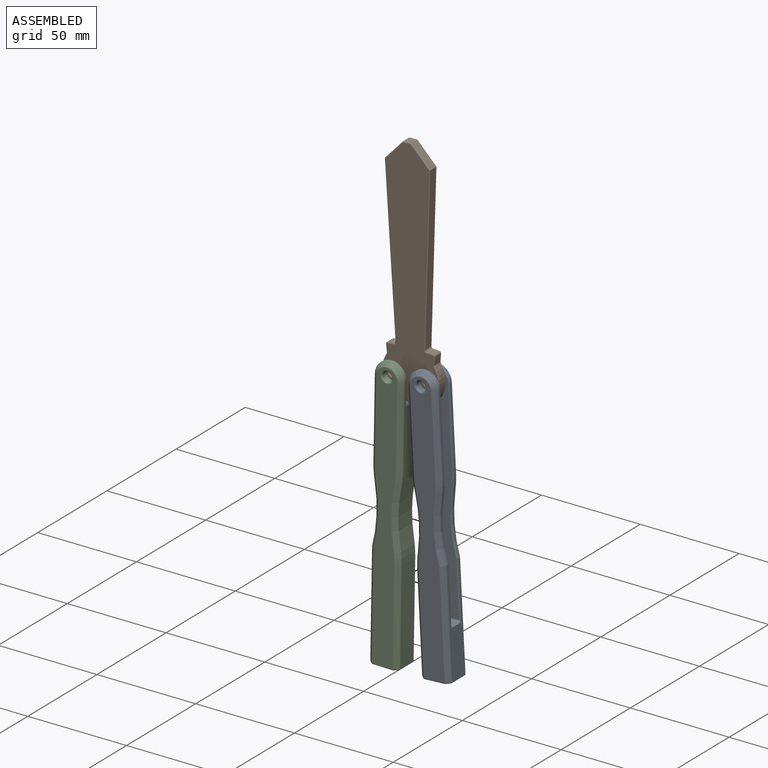
[diagram: assembled view]
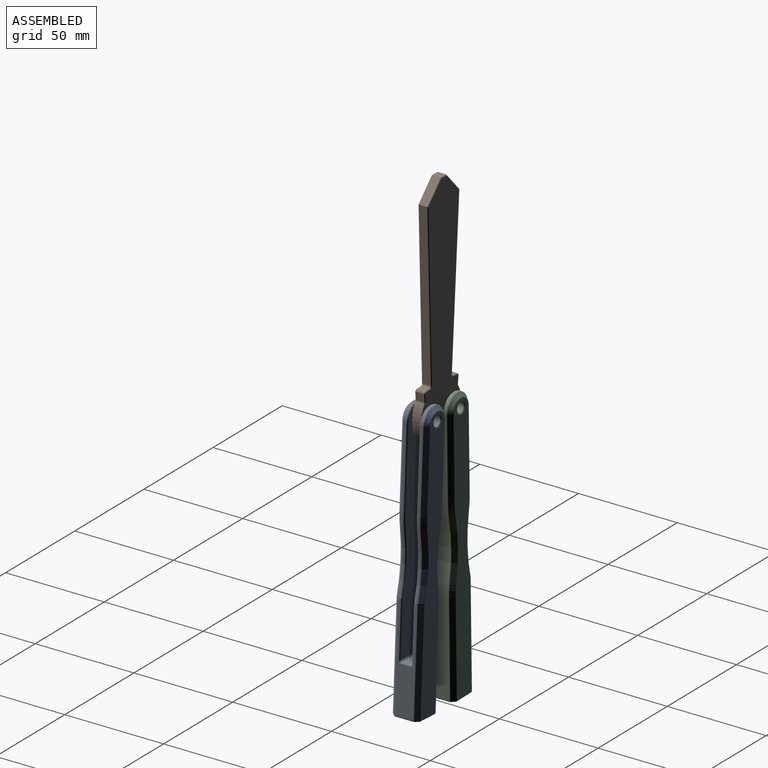
[diagram: assembled view, second angle]
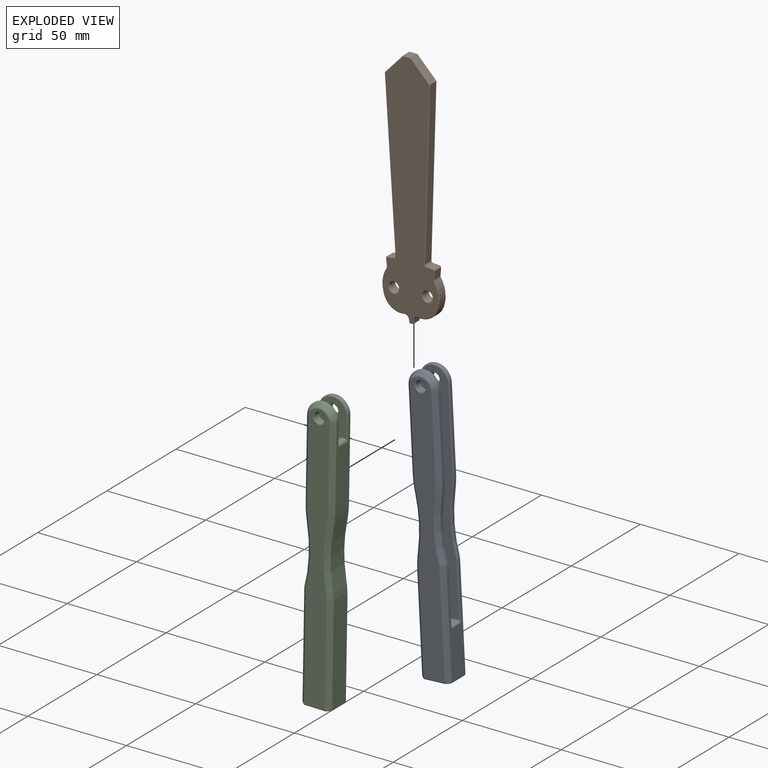
[diagram: exploded view]
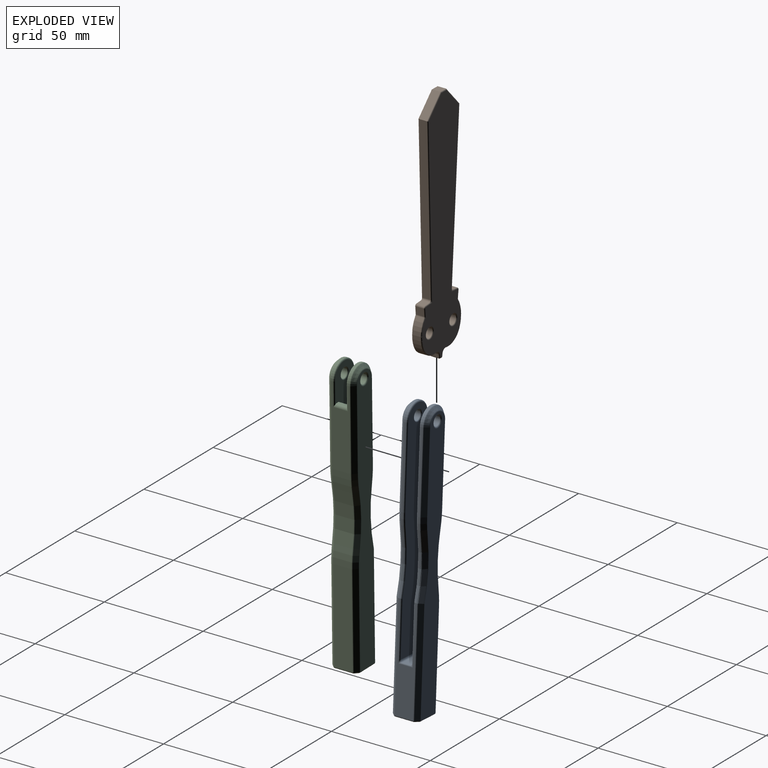
[diagram: exploded view, second angle]
ASSEMBLY  parts=3 mates=2
PART A: 128 faces, bbox 16.2x14x140.6 mm
  f0: plane 40.44x9.42mm, normal (-1,0,0), area 293.1mm2, adj f4,f5,f16,f20,f66,f74,f89,f105
  f1: plane 52.63x9.42mm, normal (1,0,0), area 281mm2, adj f93,f99,f103,f108,f111,f112,f114,f115
  f2: plane 40.44x1.01mm, normal (1,0,0), area 40.8mm2, adj f5,f22,f81,f88
  f3: plane 47.54x9.42mm, normal (-1,0,0), area 447.8mm2, adj f21,f49,f61,f62
  f4: cylinder r=7.5mm len=15mm, axis (0,1,0), area 23.8mm2, adj f0,f6,f96,f109
  f5: cylinder r=7.5mm len=15mm, axis (0,1,0), area 23.8mm2, adj f0,f2,f73,f82
  f6: plane 40.44x1.01mm, normal (1,0,0), area 40.8mm2, adj f4,f23,f101,f113
  f7: plane 13.6x12.6mm, normal (0,0,-1), area 166.3mm2, adj f62,f63,f78,f79,f91,f92,f102,f103
  f8: plane 137.01x10.42mm, normal (0,-1,0), area 1290.7mm2, adj f46,f47,f50,f51,f55,f56,f64,f65
  f9: plane 137.01x10.42mm, normal (0,1,0), area 1290.7mm2, adj f52,f57,f58,f59,f68,f69,f76,f77
  f10: plane 113.3x13.6mm, normal (0,1,0), area 1130.3mm2, adj f11,f14,f15,f16,f74,f82,f88,f95
  f11: plane 94.63x6mm, normal (1,0,0), area 567.8mm2, adj f10,f12,f15,f125
  f12: plane 113.3x13.6mm, normal (0,-1,0), area 1130.3mm2, adj f11,f14,f15,f16,f105,f109,f113,f115
  f13: plane 9.3x4mm, normal (0,0,1), area 37.2mm2, adj f112,f124,f125,f126
  f14: plane 6x1mm, normal (0,0,1), area 6mm2, adj f10,f12,f15,f16
  f15: cylinder r=1.5mm len=6mm, axis (0,1,0), area 14.1mm2, adj f10,f11,f12,f14
  f16: cylinder r=1.5mm len=7.4mm, axis (0,-1,0), area 14.9mm2, adj f0,f10,f12,f14,f74,f105
  f17: cylinder r=71mm len=29.51mm, axis (0,-1,0), area 30mm2, adj f23,f110,f114,f118
  f18: cylinder r=71mm len=29.51mm, axis (0,-1,0), area 30mm2, adj f22,f94,f99,f100
  f19: cylinder r=71mm len=25.71mm, axis (0,-1,0), area 243.5mm2, adj f20,f21,f53,f75
  f20: cylinder r=50mm len=9.42mm, axis (0,-1,0), area 85.8mm2, adj f0,f19,f60,f83
  f21: cylinder r=50mm len=9.42mm, axis (0,-1,0), area 85.8mm2, adj f3,f19,f48,f67
  f22: cylinder r=50mm len=9.05mm, axis (0,-1,0), area 9.2mm2, adj f2,f18,f87,f95
  f23: cylinder r=50mm len=9.05mm, axis (0,-1,0), area 9.2mm2, adj f6,f17,f106,f116
  f24: plane 52.69x1.59mm, normal (0.71,0.71,0), area 118.3mm2, adj f25,f90,f102,f111
  f25: cone r=73mm half-angle=45deg, axis (0,1,0), area 67.7mm2, adj f24,f26,f84,f110
  f26: cone r=48mm half-angle=45deg, axis (0,-1,0), area 20.1mm2, adj f25,f27,f76,f106
  f27: plane 40.44x1.59mm, normal (0.71,0.71,0), area 90.9mm2, adj f26,f28,f68,f101
  f28: cone r=5.5mm half-angle=45deg, axis (0,-1,0), area 45.9mm2, adj f27,f29,f58,f96
  f29: plane 40.44x1.59mm, normal (-0.71,0.71,0), area 90.9mm2, adj f28,f30,f52,f89
  f30: cone r=48mm half-angle=45deg, axis (0,-1,0), area 20.1mm2, adj f29,f31,f57,f83
  f31: cone r=73mm half-angle=45deg, axis (0,1,0), area 59mm2, adj f30,f32,f59,f75
  f32: cone r=48mm half-angle=45deg, axis (0,-1,0), area 20.1mm2, adj f31,f33,f67,f69
  f33: plane 47.54x1.59mm, normal (-0.71,0.71,0), area 106.9mm2, adj f32,f61,f77,f78
  f34: plane 52.69x1.59mm, normal (0.71,-0.71,0), area 118.3mm2, adj f35,f80,f92,f93
  f35: cone r=71mm half-angle=45deg, axis (0,-1,0), area 67.7mm2, adj f34,f36,f72,f94
  f36: cone r=48mm half-angle=45deg, axis (0,1,0), area 20.1mm2, adj f35,f37,f65,f87
  f37: plane 40.44x1.59mm, normal (0.71,-0.71,0), area 90.9mm2, adj f36,f38,f56,f81
  f38: cone r=5.5mm half-angle=45deg, axis (0,1,0), area 45.9mm2, adj f37,f39,f51,f73
  f39: plane 40.44x1.59mm, normal (-0.71,-0.71,0), area 90.9mm2, adj f38,f40,f47,f66
  f40: cone r=48mm half-angle=45deg, axis (0,1,0), area 20.1mm2, adj f39,f41,f46,f60
  f41: cone r=71mm half-angle=45deg, axis (0,-1,0), area 59mm2, adj f40,f42,f50,f53
  f42: cone r=48mm half-angle=45deg, axis (0,1,0), area 20.1mm2, adj f41,f43,f48,f55
  f43: plane 47.54x1.59mm, normal (-0.71,-0.71,0), area 106.9mm2, adj f42,f49,f63,f64
  f44: cylinder r=2.5mm len=5mm, axis (0,-1,0), area 44mm2, adj f120,f121
  f45: cylinder r=2.5mm len=5mm, axis (0,-1,0), area 44mm2, adj f119,f122
  f46: torus R=47.71mm, axis (0,-1,0), area 4.8mm2, adj f8,f40,f47,f50
  f47: cylinder r=0.7mm len=40.44mm, axis (0,0,-1), area 22.2mm2, adj f8,f39,f46,f51
  f48: torus R=49.3mm, axis (0,1,0), area 5mm2, adj f21,f42,f49,f53
  f49: cylinder r=0.7mm len=47.54mm, axis (0,0,1), area 26.1mm2, adj f3,f43,f48,f54
  f50: torus R=73.29mm, axis (0,-1,0), area 14.6mm2, adj f8,f41,f46,f55
  f51: torus R=5.21mm, axis (0,-1,0), area 9.4mm2, adj f8,f38,f47,f56
  f52: cylinder r=0.7mm len=40.44mm, axis (0,0,1), area 22.2mm2, adj f9,f29,f57,f58
  f53: torus R=71.7mm, axis (0,-1,0), area 14.2mm2, adj f19,f41,f48,f60
  f54: sphere r=0.7mm, area 0.4mm2, adj f49,f62,f63
  f55: torus R=47.71mm, axis (0,-1,0), area 4.8mm2, adj f8,f42,f50,f64
  f56: cylinder r=0.7mm len=40.44mm, axis (0,0,1), area 22.2mm2, adj f8,f37,f51,f65
  f57: torus R=47.71mm, axis (0,-1,0), area 4.8mm2, adj f9,f30,f52,f59
  f58: torus R=5.21mm, axis (0,-1,0), area 9.4mm2, adj f9,f28,f52,f68
  f59: torus R=73.29mm, axis (0,-1,0), area 14.6mm2, adj f9,f31,f57,f69
  f60: torus R=49.3mm, axis (0,1,0), area 5mm2, adj f20,f40,f53,f66
  f61: cylinder r=0.7mm len=47.54mm, axis (0,0,1), area 26.1mm2, adj f3,f33,f67,f70
  f62: cylinder r=0.7mm len=9.42mm, axis (0,1,0), area 10.4mm2, adj f3,f7,f54,f70
  f63: cylinder r=0.7mm len=2.09mm, axis (-0.71,0.71,0), area 2.5mm2, adj f7,f43,f54,f71
  f64: cylinder r=0.7mm len=47.54mm, axis (0,0,-1), area 26.1mm2, adj f8,f43,f55,f71
  f65: torus R=47.71mm, axis (0,-1,0), area 4.8mm2, adj f8,f36,f56,f72
  f66: cylinder r=0.7mm len=40.44mm, axis (0,0,1), area 22.2mm2, adj f0,f39,f60,f73
  f67: torus R=49.3mm, axis (0,-1,0), area 5mm2, adj f21,f32,f61,f75
  f68: cylinder r=0.7mm len=40.44mm, axis (0,0,-1), area 22.2mm2, adj f9,f27,f58,f76
  f69: torus R=47.71mm, axis (0,-1,0), area 4.8mm2, adj f9,f32,f59,f77
  f70: sphere r=0.7mm, area 0.4mm2, adj f61,f62,f78
  f71: sphere r=0.7mm, area 0.4mm2, adj f63,f64,f79
  f72: torus R=73.29mm, axis (0,-1,0), area 16.7mm2, adj f8,f35,f65,f80
  f73: torus R=6.8mm, axis (0,1,0), area 12.8mm2, adj f5,f38,f66,f81
  f74: cylinder r=0.7mm len=11.87mm, axis (0,0,-1), area 12.3mm2, adj f0,f10,f16,f82
  f75: torus R=71.7mm, axis (0,1,0), area 14.2mm2, adj f19,f31,f67,f83
  f76: torus R=47.71mm, axis (0,-1,0), area 4.8mm2, adj f9,f26,f68,f84
  f77: cylinder r=0.7mm len=47.54mm, axis (0,0,1), area 26.1mm2, adj f9,f33,f69,f85
  f78: cylinder r=0.7mm len=2.09mm, axis (-0.71,-0.71,0), area 2.5mm2, adj f7,f33,f70,f85
  f79: cylinder r=0.7mm len=10.42mm, axis (1,0,0), area 11.5mm2, adj f7,f8,f71,f86
  f80: cylinder r=0.7mm len=52.5mm, axis (0,0,1), area 28.8mm2, adj f8,f34,f72,f86
  f81: cylinder r=0.7mm len=40.44mm, axis (0,0,-1), area 22.2mm2, adj f2,f37,f73,f87
  f82: torus R=6.8mm, axis (0,-1,0), area 25mm2, adj f5,f10,f74,f88
  f83: torus R=49.3mm, axis (0,-1,0), area 5mm2, adj f20,f30,f75,f89
  f84: torus R=73.29mm, axis (0,-1,0), area 16.7mm2, adj f9,f25,f76,f90
  f85: sphere r=0.7mm, area 0.4mm2, adj f77,f78,f91
  f86: sphere r=0.7mm, area 0.4mm2, adj f79,f80,f92
  f87: torus R=49.3mm, axis (0,1,0), area 5mm2, adj f22,f36,f81,f94
  f88: cylinder r=0.7mm len=40.44mm, axis (0,0,-1), area 44.5mm2, adj f2,f10,f82,f95
  f89: cylinder r=0.7mm len=40.44mm, axis (0,0,1), area 22.2mm2, adj f0,f29,f83,f96
  f90: cylinder r=0.7mm len=52.5mm, axis (0,0,-1), area 28.8mm2, adj f9,f24,f84,f97
  f91: cylinder r=0.7mm len=10.42mm, axis (-1,0,0), area 11.5mm2, adj f7,f9,f85,f97
  f92: cylinder r=0.7mm len=2.09mm, axis (-0.71,-0.71,0), area 2.5mm2, adj f7,f34,f86,f98
  f93: cylinder r=0.7mm len=52.72mm, axis (0,0,-1), area 29mm2, adj f1,f34,f94,f98,f99
  f94: torus R=71.7mm, axis (0,-1,0), area 16.4mm2, adj f18,f35,f87,f93,f99
  f95: torus R=49.3mm, axis (0,-1,0), area 10mm2, adj f10,f22,f88,f100
  f96: torus R=6.8mm, axis (0,-1,0), area 12.8mm2, adj f4,f28,f89,f101
  f97: sphere r=0.7mm, area 0.4mm2, adj f90,f91,f102
  f98: sphere r=0.7mm, area 0.4mm2, adj f92,f93,f103
  f99: cylinder r=0.7mm len=1.09mm, axis (0,-1,0), area 0.2mm2, adj f1,f18,f93,f94,f104
  f100: torus R=71.7mm, axis (0,-1,0), area 32.8mm2, adj f10,f18,f95,f104
  f101: cylinder r=0.7mm len=40.44mm, axis (0,0,-1), area 22.2mm2, adj f6,f27,f96,f106
  f102: cylinder r=0.7mm len=2.09mm, axis (-0.71,0.71,0), area 2.5mm2, adj f7,f24,f97,f107
  f103: cylinder r=0.7mm len=9.42mm, axis (0,1,0), area 10.4mm2, adj f1,f7,f98,f107
  f104: sphere r=0.7mm, area 0.1mm2, adj f99,f100,f108
  f105: cylinder r=0.7mm len=11.87mm, axis (0,0,1), area 12.3mm2, adj f0,f12,f16,f109
  f106: torus R=49.3mm, axis (0,-1,0), area 5mm2, adj f23,f26,f101,f110
  f107: sphere r=0.7mm, area 0.4mm2, adj f102,f103,f111
  f108: cylinder r=0.7mm len=29.03mm, axis (0,0,-1), area 30.7mm2, adj f1,f10,f104,f127
  f109: torus R=6.8mm, axis (0,1,0), area 25mm2, adj f4,f12,f105,f113
  f110: torus R=71.7mm, axis (0,1,0), area 16.4mm2, adj f17,f25,f106,f111,f114
  f111: cylinder r=0.7mm len=52.72mm, axis (0,0,-1), area 29mm2, adj f1,f24,f107,f110,f114
  f112: cylinder r=0.7mm len=7.4mm, axis (0,1,0), area 5.8mm2, adj f1,f13,f123,f127
  f113: cylinder r=0.7mm len=40.44mm, axis (0,0,-1), area 44.5mm2, adj f6,f12,f109,f116
  f114: cylinder r=0.7mm len=1.09mm, axis (0,-1,0), area 0.2mm2, adj f1,f17,f110,f111,f117
  f115: cylinder r=0.7mm len=29.03mm, axis (0,0,-1), area 30.7mm2, adj f1,f12,f117,f123
  f116: torus R=49.3mm, axis (0,1,0), area 10mm2, adj f12,f23,f113,f118
  f117: sphere r=0.7mm, area 0.1mm2, adj f114,f115,f118
  f118: torus R=71.7mm, axis (0,1,0), area 32.8mm2, adj f12,f17,f116,f117
  f119: torus R=3.2mm, axis (0,-1,0), area 19mm2, adj f8,f45
  f120: torus R=3.2mm, axis (0,-1,0), area 19mm2, adj f9,f44
  f121: torus R=3mm, axis (0,1,0), area 13.2mm2, adj f12,f44
  f122: torus R=3mm, axis (0,-1,0), area 13.2mm2, adj f10,f45
  f123: bspline ~1.7x1.7mm, area 1.4mm2, adj f112,f115,f124
  f124: cylinder r=1mm len=10.3mm, axis (1,0,0), area 15.6mm2, adj f12,f13,f123,f125
  f125: cylinder r=1mm len=6mm, axis (0,1,0), area 8.3mm2, adj f11,f13,f124,f126
  f126: cylinder r=1mm len=10.3mm, axis (-1,0,0), area 15.6mm2, adj f10,f13,f125,f127
  f127: bspline ~1.7x1.7mm, area 1.4mm2, adj f108,f112,f126
PART B: 86 faces, bbox 31.4x5x121.8 mm
  f0: plane 120.77x28mm, normal (0,-1,0), area 2173.9mm2, adj f24,f25,f26,f27,f28,f29,f30,f31
  f1: plane 120.77x28mm, normal (0,1,0), area 2173.9mm2, adj f44,f45,f46,f47,f48,f49,f50,f51
  f2: plane 82.58x4mm, normal (1,0,0.05), area 330.7mm2, adj f17,f25,f46,f78
  f3: plane 4x3.01mm, normal (0.08,0,-1), area 12.1mm2, adj f27,f48,f72,f78
  f4: plane 4x3.63mm, normal (1,0,0.1), area 14.6mm2, adj f29,f50,f72,f75
  f5: cylinder r=14.5mm len=13.74mm, axis (0,1,0), area 57.5mm2, adj f21,f31,f52,f75
  f6: plane 4x1.46mm, normal (0.99,0,0.15), area 5.9mm2, adj f19,f23,f37,f58
  f7: cylinder r=2.5mm len=5mm, axis (0,-1,0), area 62.8mm2, adj f66,f67
  f8: plane 4x1.14mm, normal (0,0,1), area 4.6mm2, adj f22,f23,f41,f62
  f9: plane 4x4mm, normal (0,0,-1), area 16mm2, adj f16,f17,f26,f45
  f10: plane 82.58x4mm, normal (-1,0,0.05), area 330.7mm2, adj f16,f30,f49,f84
  f11: plane 4x3.01mm, normal (-0.08,0,-1), area 12.1mm2, adj f32,f51,f69,f84
  f12: plane 4x3.63mm, normal (-1,0,0.1), area 14.6mm2, adj f34,f53,f69,f81
  f13: cylinder r=14.5mm len=13.74mm, axis (0,1,0), area 57.5mm2, adj f20,f36,f55,f81
  f14: plane 4x1.46mm, normal (-0.99,0,0.15), area 5.9mm2, adj f18,f22,f42,f61
  f15: cylinder r=2.5mm len=5mm, axis (0,-1,0), area 62.8mm2, adj f64,f65
  f16: plane 9.99x9.52mm, normal (-0.72,0,-0.69), area 55.2mm2, adj f9,f10,f28,f47
  f17: plane 9.99x9.52mm, normal (0.72,0,-0.69), area 55.2mm2, adj f2,f9,f24,f44
  f18: cylinder r=2mm len=4mm, axis (0,1,0), area 12.6mm2, adj f14,f20,f40,f59
  f19: cylinder r=2mm len=4mm, axis (0,1,0), area 12.6mm2, adj f6,f21,f35,f56
  f20: cylinder r=9mm len=9.66mm, axis (0,-1,0), area 47.3mm2, adj f13,f18,f38,f57
  f21: cylinder r=9mm len=9.66mm, axis (0,-1,0), area 47.3mm2, adj f5,f19,f33,f54
  f22: cylinder r=0.5mm len=4mm, axis (0,1,0), area 2.8mm2, adj f8,f14,f43,f63
  f23: cylinder r=0.5mm len=4mm, axis (0,1,0), area 2.8mm2, adj f6,f8,f39,f60
  f24: cylinder r=0.5mm len=10.33mm, axis (-0.69,0,-0.72), area 10.7mm2, adj f0,f17,f25,f26
  f25: cylinder r=0.5mm len=84.05mm, axis (0.05,0,-1), area 65.3mm2, adj f0,f2,f24,f79
  f26: cylinder r=0.5mm len=4mm, axis (-1,0,0), area 3mm2, adj f0,f9,f24,f28
  f27: cylinder r=0.5mm len=4.49mm, axis (-1,0,-0.08), area 2.8mm2, adj f0,f3,f71,f79
  f28: cylinder r=0.5mm len=10.33mm, axis (-0.69,0,0.72), area 10.7mm2, adj f0,f16,f26,f30
  f29: cylinder r=0.5mm len=4.22mm, axis (0.1,0,-1), area 3.1mm2, adj f0,f4,f71,f76
  f30: cylinder r=0.5mm len=84.05mm, axis (-0.05,0,-1), area 65.3mm2, adj f0,f10,f28,f85
  f31: torus R=14mm, axis (0,-1,0), area 11.3mm2, adj f0,f5,f33,f76
  f32: cylinder r=0.5mm len=4.49mm, axis (1,0,-0.08), area 2.8mm2, adj f0,f11,f68,f85
  f33: torus R=8.5mm, axis (0,-1,0), area 9.1mm2, adj f0,f21,f31,f35
  f34: cylinder r=0.5mm len=4.22mm, axis (-0.1,0,-1), area 3.1mm2, adj f0,f12,f68,f82
  f35: torus R=2.5mm, axis (0,-1,0), area 2.7mm2, adj f0,f19,f33,f37
  f36: torus R=14mm, axis (0,-1,0), area 11.3mm2, adj f0,f13,f38,f82
  f37: cylinder r=0.5mm len=1.54mm, axis (0.15,0,-0.99), area 1.2mm2, adj f0,f6,f35,f39
  f38: torus R=8.5mm, axis (0,-1,0), area 9.1mm2, adj f0,f20,f36,f40
  f39: sphere r=0.5mm, area 0.4mm2, adj f23,f37,f41
  f40: torus R=2.5mm, axis (0,-1,0), area 2.7mm2, adj f0,f18,f38,f42
  f41: cylinder r=0.5mm len=1.14mm, axis (1,0,0), area 0.9mm2, adj f0,f8,f39,f43
  f42: cylinder r=0.5mm len=1.54mm, axis (-0.15,0,-0.99), area 1.2mm2, adj f0,f14,f40,f43
  f43: sphere r=0.5mm, area 0.4mm2, adj f22,f41,f42
  f44: cylinder r=0.5mm len=10.33mm, axis (-0.69,0,-0.72), area 10.7mm2, adj f1,f17,f45,f46
  f45: cylinder r=0.5mm len=4mm, axis (1,0,0), area 3mm2, adj f1,f9,f44,f47
  f46: cylinder r=0.5mm len=84.05mm, axis (-0.05,0,1), area 65.3mm2, adj f1,f2,f44,f77
  f47: cylinder r=0.5mm len=10.33mm, axis (-0.69,0,0.72), area 10.7mm2, adj f1,f16,f45,f49
  f48: cylinder r=0.5mm len=4.49mm, axis (1,0,0.08), area 2.8mm2, adj f1,f3,f73,f77
  f49: cylinder r=0.5mm len=84.05mm, axis (0.05,0,1), area 65.3mm2, adj f1,f10,f47,f83
  f50: cylinder r=0.5mm len=4.22mm, axis (-0.1,0,1), area 3.1mm2, adj f1,f4,f73,f74
  f51: cylinder r=0.5mm len=4.49mm, axis (-1,0,0.08), area 2.8mm2, adj f1,f11,f70,f83
  f52: torus R=14mm, axis (0,-1,0), area 11.3mm2, adj f1,f5,f54,f74
  f53: cylinder r=0.5mm len=4.22mm, axis (0.1,0,1), area 3.1mm2, adj f1,f12,f70,f80
  f54: torus R=8.5mm, axis (0,-1,0), area 9.1mm2, adj f1,f21,f52,f56
  f55: torus R=14mm, axis (0,-1,0), area 11.3mm2, adj f1,f13,f57,f80
  f56: torus R=2.5mm, axis (0,-1,0), area 2.7mm2, adj f1,f19,f54,f58
  f57: torus R=8.5mm, axis (0,-1,0), area 9.1mm2, adj f1,f20,f55,f59
  f58: cylinder r=0.5mm len=1.54mm, axis (-0.15,0,0.99), area 1.2mm2, adj f1,f6,f56,f60
  f59: torus R=2.5mm, axis (0,-1,0), area 2.7mm2, adj f1,f18,f57,f61
  f60: sphere r=0.5mm, area 0.4mm2, adj f23,f58,f62
  f61: cylinder r=0.5mm len=1.54mm, axis (0.15,0,0.99), area 1.2mm2, adj f1,f14,f59,f63
  f62: cylinder r=0.5mm len=1.14mm, axis (-1,0,0), area 0.9mm2, adj f1,f8,f60,f63
  f63: sphere r=0.5mm, area 0.4mm2, adj f22,f61,f62
  f64: torus R=3mm, axis (0,-1,0), area 13.2mm2, adj f0,f15
  f65: torus R=3mm, axis (0,-1,0), area 13.2mm2, adj f1,f15
  f66: torus R=3mm, axis (0,-1,0), area 13.2mm2, adj f0,f7
  f67: torus R=3mm, axis (0,-1,0), area 13.2mm2, adj f1,f7
  f68: torus R=0.5mm, axis (0,-1,0), area 1mm2, adj f0,f32,f34,f69
  f69: cylinder r=1mm len=4mm, axis (0,-1,0), area 6.3mm2, adj f11,f12,f68,f70
  f70: torus R=0.5mm, axis (0,-1,0), area 1mm2, adj f1,f51,f53,f69
  f71: torus R=0.5mm, axis (0,-1,0), area 1mm2, adj f0,f27,f29,f72
  f72: cylinder r=1mm len=4mm, axis (0,-1,0), area 6.3mm2, adj f3,f4,f71,f73
  f73: torus R=0.5mm, axis (0,-1,0), area 1mm2, adj f1,f48,f50,f72
  f74: bspline ~0.71x0.64mm, area 0.2mm2, adj f50,f52,f75
  f75: cylinder r=1mm len=4mm, axis (0,1,0), area 2.7mm2, adj f4,f5,f74,f76
  f76: bspline ~0.71x0.64mm, area 0.2mm2, adj f29,f31,f75
  f77: bspline ~1.48x1.42mm, area 1mm2, adj f46,f48,f78
  f78: cylinder r=1mm len=4mm, axis (0,-1,0), area 6.1mm2, adj f2,f3,f77,f79
  f79: bspline ~1.48x1.42mm, area 1mm2, adj f25,f27,f78
  f80: bspline ~0.71x0.64mm, area 0.2mm2, adj f53,f55,f81
  f81: cylinder r=1mm len=4mm, axis (0,1,0), area 2.7mm2, adj f12,f13,f80,f82
  f82: bspline ~0.71x0.64mm, area 0.2mm2, adj f34,f36,f81
  f83: bspline ~1.48x1.42mm, area 1mm2, adj f49,f51,f84
  f84: cylinder r=1mm len=4mm, axis (0,-1,0), area 6.1mm2, adj f10,f11,f83,f85
  f85: bspline ~1.48x1.42mm, area 1mm2, adj f30,f32,f84
PART C: 128 faces, bbox 16.2x14x140.6 mm
  f0: plane 40.44x9.42mm, normal (1,0,0), area 293.1mm2, adj f4,f5,f16,f20,f58,f67,f95,f105
  f1: plane 52.63x9.42mm, normal (-1,0,0), area 281mm2, adj f91,f97,f102,f106,f110,f111,f114,f115
  f2: plane 40.44x1.01mm, normal (-1,0,0), area 40.8mm2, adj f5,f22,f76,f83
  f3: plane 47.54x9.42mm, normal (1,0,0), area 447.8mm2, adj f21,f52,f65,f66
  f4: cylinder r=7.5mm len=15mm, axis (0,1,0), area 23.8mm2, adj f0,f6,f100,f109
  f5: cylinder r=7.5mm len=15mm, axis (0,1,0), area 23.8mm2, adj f0,f2,f68,f75
  f6: plane 40.44x1.01mm, normal (-1,0,0), area 40.8mm2, adj f4,f23,f104,f113
  f7: plane 13.6x12.6mm, normal (0,0,-1), area 166.3mm2, adj f61,f65,f78,f79,f92,f93,f102,f103
  f8: plane 137.01x10.42mm, normal (0,-1,0), area 1290.7mm2, adj f46,f47,f50,f51,f54,f55,f59,f60
  f9: plane 137.01x10.42mm, normal (0,1,0), area 1290.7mm2, adj f56,f62,f63,f64,f72,f73,f80,f81
  f10: plane 113.3x13.6mm, normal (0,1,0), area 1130.3mm2, adj f11,f14,f15,f16,f67,f75,f83,f89
  f11: plane 94.63x6mm, normal (-1,0,0), area 567.8mm2, adj f10,f12,f15,f125
  f12: plane 113.3x13.6mm, normal (0,-1,0), area 1130.3mm2, adj f11,f14,f15,f16,f105,f109,f113,f114
  f13: plane 9.3x4mm, normal (0,0,1), area 37.2mm2, adj f110,f124,f125,f126
  f14: plane 6x1mm, normal (0,0,1), area 6mm2, adj f10,f12,f15,f16
  f15: cylinder r=1.5mm len=6mm, axis (0,1,0), area 14.1mm2, adj f10,f11,f12,f14
  f16: cylinder r=1.5mm len=7.4mm, axis (0,-1,0), area 14.9mm2, adj f0,f10,f12,f14,f67,f105
  f17: cylinder r=71mm len=29.51mm, axis (0,-1,0), area 30mm2, adj f23,f112,f115,f118
  f18: cylinder r=71mm len=29.51mm, axis (0,-1,0), area 30mm2, adj f22,f90,f96,f97
  f19: cylinder r=71mm len=25.71mm, axis (0,-1,0), area 243.5mm2, adj f20,f21,f49,f82
  f20: cylinder r=50mm len=9.42mm, axis (0,-1,0), area 85.8mm2, adj f0,f19,f53,f88
  f21: cylinder r=50mm len=9.42mm, axis (0,-1,0), area 85.8mm2, adj f3,f19,f48,f74
  f22: cylinder r=50mm len=9.05mm, axis (0,-1,0), area 9.2mm2, adj f2,f18,f84,f89
  f23: cylinder r=50mm len=9.05mm, axis (0,-1,0), area 9.2mm2, adj f6,f17,f108,f116
  f24: plane 52.69x1.59mm, normal (-0.71,0.71,0), area 118.3mm2, adj f25,f94,f103,f111
  f25: cone r=73mm half-angle=45deg, axis (0,1,0), area 67.7mm2, adj f24,f26,f87,f112
  f26: cone r=48mm half-angle=45deg, axis (0,-1,0), area 20.1mm2, adj f25,f27,f81,f108
  f27: plane 40.44x1.59mm, normal (-0.71,0.71,0), area 90.9mm2, adj f26,f28,f73,f104
  f28: cone r=5.5mm half-angle=45deg, axis (0,-1,0), area 45.9mm2, adj f27,f29,f64,f100
  f29: plane 40.44x1.59mm, normal (0.71,0.71,0), area 90.9mm2, adj f28,f30,f62,f95
  f30: cone r=48mm half-angle=45deg, axis (0,-1,0), area 20.1mm2, adj f29,f31,f56,f88
  f31: cone r=73mm half-angle=45deg, axis (0,1,0), area 59mm2, adj f30,f32,f63,f82
  f32: cone r=48mm half-angle=45deg, axis (0,-1,0), area 20.1mm2, adj f31,f33,f72,f74
  f33: plane 47.54x1.59mm, normal (0.71,0.71,0), area 106.9mm2, adj f32,f66,f79,f80
  f34: plane 52.69x1.59mm, normal (-0.71,-0.71,0), area 118.3mm2, adj f35,f77,f91,f92
  f35: cone r=71mm half-angle=45deg, axis (0,-1,0), area 67.7mm2, adj f34,f36,f69,f90
  f36: cone r=48mm half-angle=45deg, axis (0,1,0), area 20.1mm2, adj f35,f37,f59,f84
  f37: plane 40.44x1.59mm, normal (-0.71,-0.71,0), area 90.9mm2, adj f36,f38,f54,f76
  f38: cone r=5.5mm half-angle=45deg, axis (0,1,0), area 45.9mm2, adj f37,f39,f50,f68
  f39: plane 40.44x1.59mm, normal (0.71,-0.71,0), area 90.9mm2, adj f38,f40,f46,f58
  f40: cone r=48mm half-angle=45deg, axis (0,1,0), area 20.1mm2, adj f39,f41,f47,f53
  f41: cone r=71mm half-angle=45deg, axis (0,-1,0), area 59mm2, adj f40,f42,f49,f51
  f42: cone r=48mm half-angle=45deg, axis (0,1,0), area 20.1mm2, adj f41,f43,f48,f55
  f43: plane 47.54x1.59mm, normal (0.71,-0.71,0), area 106.9mm2, adj f42,f52,f60,f61
  f44: cylinder r=2.5mm len=5mm, axis (0,-1,0), area 44mm2, adj f119,f122
  f45: cylinder r=2.5mm len=5mm, axis (0,-1,0), area 44mm2, adj f120,f121
  f46: cylinder r=0.7mm len=40.44mm, axis (0,0,-1), area 22.2mm2, adj f8,f39,f47,f50
  f47: torus R=47.71mm, axis (0,-1,0), area 4.8mm2, adj f8,f40,f46,f51
  f48: torus R=49.3mm, axis (0,-1,0), area 5mm2, adj f21,f42,f49,f52
  f49: torus R=71.7mm, axis (0,1,0), area 14.2mm2, adj f19,f41,f48,f53
  f50: torus R=5.21mm, axis (0,-1,0), area 9.4mm2, adj f8,f38,f46,f54
  f51: torus R=73.29mm, axis (0,-1,0), area 14.6mm2, adj f8,f41,f47,f55
  f52: cylinder r=0.7mm len=47.54mm, axis (0,0,1), area 26.1mm2, adj f3,f43,f48,f57
  f53: torus R=49.3mm, axis (0,-1,0), area 5mm2, adj f20,f40,f49,f58
  f54: cylinder r=0.7mm len=40.44mm, axis (0,0,1), area 22.2mm2, adj f8,f37,f50,f59
  f55: torus R=47.71mm, axis (0,-1,0), area 4.8mm2, adj f8,f42,f51,f60
  f56: torus R=47.71mm, axis (0,-1,0), area 4.8mm2, adj f9,f30,f62,f63
  f57: sphere r=0.7mm, area 0.4mm2, adj f52,f61,f65
  f58: cylinder r=0.7mm len=40.44mm, axis (0,0,1), area 22.2mm2, adj f0,f39,f53,f68
  f59: torus R=47.71mm, axis (0,-1,0), area 4.8mm2, adj f8,f36,f54,f69
  f60: cylinder r=0.7mm len=47.54mm, axis (0,0,-1), area 26.1mm2, adj f8,f43,f55,f70
  f61: cylinder r=0.7mm len=2.09mm, axis (0.71,0.71,0), area 2.5mm2, adj f7,f43,f57,f70
  f62: cylinder r=0.7mm len=40.44mm, axis (0,0,1), area 22.2mm2, adj f9,f29,f56,f64
  f63: torus R=73.29mm, axis (0,-1,0), area 14.6mm2, adj f9,f31,f56,f72
  f64: torus R=5.21mm, axis (0,-1,0), area 9.4mm2, adj f9,f28,f62,f73
  f65: cylinder r=0.7mm len=9.42mm, axis (0,1,0), area 10.4mm2, adj f3,f7,f57,f71
  f66: cylinder r=0.7mm len=47.54mm, axis (0,0,1), area 26.1mm2, adj f3,f33,f71,f74
  f67: cylinder r=0.7mm len=11.87mm, axis (0,0,-1), area 12.3mm2, adj f0,f10,f16,f75
  f68: torus R=6.8mm, axis (0,-1,0), area 12.8mm2, adj f5,f38,f58,f76
  f69: torus R=73.29mm, axis (0,-1,0), area 16.7mm2, adj f8,f35,f59,f77
  f70: sphere r=0.7mm, area 0.4mm2, adj f60,f61,f78
  f71: sphere r=0.7mm, area 0.4mm2, adj f65,f66,f79
  f72: torus R=47.71mm, axis (0,-1,0), area 4.8mm2, adj f9,f32,f63,f80
  f73: cylinder r=0.7mm len=40.44mm, axis (0,0,-1), area 22.2mm2, adj f9,f27,f64,f81
  f74: torus R=49.3mm, axis (0,1,0), area 5mm2, adj f21,f32,f66,f82
  f75: torus R=6.8mm, axis (0,-1,0), area 25mm2, adj f5,f10,f67,f83
  f76: cylinder r=0.7mm len=40.44mm, axis (0,0,-1), area 22.2mm2, adj f2,f37,f68,f84
  f77: cylinder r=0.7mm len=52.5mm, axis (0,0,1), area 28.8mm2, adj f8,f34,f69,f85
  f78: cylinder r=0.7mm len=10.42mm, axis (-1,0,0), area 11.5mm2, adj f7,f8,f70,f85
  f79: cylinder r=0.7mm len=2.09mm, axis (0.71,-0.71,0), area 2.5mm2, adj f7,f33,f71,f86
  f80: cylinder r=0.7mm len=47.54mm, axis (0,0,1), area 26.1mm2, adj f9,f33,f72,f86
  f81: torus R=47.71mm, axis (0,-1,0), area 4.8mm2, adj f9,f26,f73,f87
  f82: torus R=71.7mm, axis (0,-1,0), area 14.2mm2, adj f19,f31,f74,f88
  f83: cylinder r=0.7mm len=40.44mm, axis (0,0,-1), area 44.5mm2, adj f2,f10,f75,f89
  f84: torus R=49.3mm, axis (0,-1,0), area 5mm2, adj f22,f36,f76,f90
  f85: sphere r=0.7mm, area 0.4mm2, adj f77,f78,f92
  f86: sphere r=0.7mm, area 0.4mm2, adj f79,f80,f93
  f87: torus R=73.29mm, axis (0,-1,0), area 16.7mm2, adj f9,f25,f81,f94
  f88: torus R=49.3mm, axis (0,1,0), area 5mm2, adj f20,f30,f82,f95
  f89: torus R=49.3mm, axis (0,-1,0), area 10mm2, adj f10,f22,f83,f96
  f90: torus R=71.7mm, axis (0,1,0), area 16.4mm2, adj f18,f35,f84,f91,f97
  f91: cylinder r=0.7mm len=52.72mm, axis (0,0,-1), area 29mm2, adj f1,f34,f90,f97,f98
  f92: cylinder r=0.7mm len=2.09mm, axis (0.71,-0.71,0), area 2.5mm2, adj f7,f34,f85,f98
  f93: cylinder r=0.7mm len=10.42mm, axis (1,0,0), area 11.5mm2, adj f7,f9,f86,f99
  f94: cylinder r=0.7mm len=52.5mm, axis (0,0,-1), area 28.8mm2, adj f9,f24,f87,f99
  f95: cylinder r=0.7mm len=40.44mm, axis (0,0,1), area 22.2mm2, adj f0,f29,f88,f100
  f96: torus R=71.7mm, axis (0,-1,0), area 32.8mm2, adj f10,f18,f89,f101
  f97: cylinder r=0.7mm len=1.09mm, axis (0,-1,0), area 0.2mm2, adj f1,f18,f90,f91,f101
  f98: sphere r=0.7mm, area 0.4mm2, adj f91,f92,f102
  f99: sphere r=0.7mm, area 0.4mm2, adj f93,f94,f103
  f100: torus R=6.8mm, axis (0,1,0), area 12.8mm2, adj f4,f28,f95,f104
  f101: sphere r=0.7mm, area 0.1mm2, adj f96,f97,f106
  f102: cylinder r=0.7mm len=9.42mm, axis (0,1,0), area 10.4mm2, adj f1,f7,f98,f107
  f103: cylinder r=0.7mm len=2.09mm, axis (0.71,0.71,0), area 2.5mm2, adj f7,f24,f99,f107
  f104: cylinder r=0.7mm len=40.44mm, axis (0,0,-1), area 22.2mm2, adj f6,f27,f100,f108
  f105: cylinder r=0.7mm len=11.87mm, axis (0,0,1), area 12.3mm2, adj f0,f12,f16,f109
  f106: cylinder r=0.7mm len=29.03mm, axis (0,0,-1), area 30.7mm2, adj f1,f10,f101,f127
  f107: sphere r=0.7mm, area 0.4mm2, adj f102,f103,f111
  f108: torus R=49.3mm, axis (0,1,0), area 5mm2, adj f23,f26,f104,f112
  f109: torus R=6.8mm, axis (0,1,0), area 25mm2, adj f4,f12,f105,f113
  f110: cylinder r=0.7mm len=7.4mm, axis (0,1,0), area 5.8mm2, adj f1,f13,f123,f127
  f111: cylinder r=0.7mm len=52.72mm, axis (0,0,-1), area 29mm2, adj f1,f24,f107,f112,f115
  f112: torus R=71.7mm, axis (0,-1,0), area 16.4mm2, adj f17,f25,f108,f111,f115
  f113: cylinder r=0.7mm len=40.44mm, axis (0,0,-1), area 44.5mm2, adj f6,f12,f109,f116
  f114: cylinder r=0.7mm len=29.03mm, axis (0,0,-1), area 30.7mm2, adj f1,f12,f117,f123
  f115: cylinder r=0.7mm len=1.09mm, axis (0,-1,0), area 0.2mm2, adj f1,f17,f111,f112,f117
  f116: torus R=49.3mm, axis (0,1,0), area 10mm2, adj f12,f23,f113,f118
  f117: sphere r=0.7mm, area 0.1mm2, adj f114,f115,f118
  f118: torus R=71.7mm, axis (0,1,0), area 32.8mm2, adj f12,f17,f116,f117
  f119: torus R=3.2mm, axis (0,-1,0), area 19mm2, adj f9,f44
  f120: torus R=3.2mm, axis (0,-1,0), area 19mm2, adj f8,f45
  f121: torus R=3mm, axis (0,-1,0), area 13.2mm2, adj f10,f45
  f122: torus R=3mm, axis (0,1,0), area 13.2mm2, adj f12,f44
  f123: bspline ~1.7x1.7mm, area 1.4mm2, adj f110,f114,f124
  f124: cylinder r=1mm len=10.3mm, axis (-1,0,0), area 15.6mm2, adj f12,f13,f123,f125
  f125: cylinder r=1mm len=6mm, axis (0,1,0), area 8.3mm2, adj f11,f13,f124,f126
  f126: cylinder r=1mm len=10.3mm, axis (1,0,0), area 15.6mm2, adj f10,f13,f125,f127
  f127: bspline ~1.7x1.7mm, area 1.4mm2, adj f106,f110,f126
PLACE A rot(axis=(0,-1,0),3deg) t=(-17.46,23.72,21.54)mm
PLACE B rot(axis=(0,1,0),179deg) t=(-43.76,24.22,287.74)mm
PLACE C rot(axis=(0,1,0),1deg) t=(-60.76,23.72,20.78)mm
MATE revolute B.f15 <-> A.f44  axis (0,1,0) through (-32.93,26.72,154.41)mm
MATE revolute B.f7 <-> C.f44  axis (0,1,0) through (-49.93,26.72,154.11)mm
